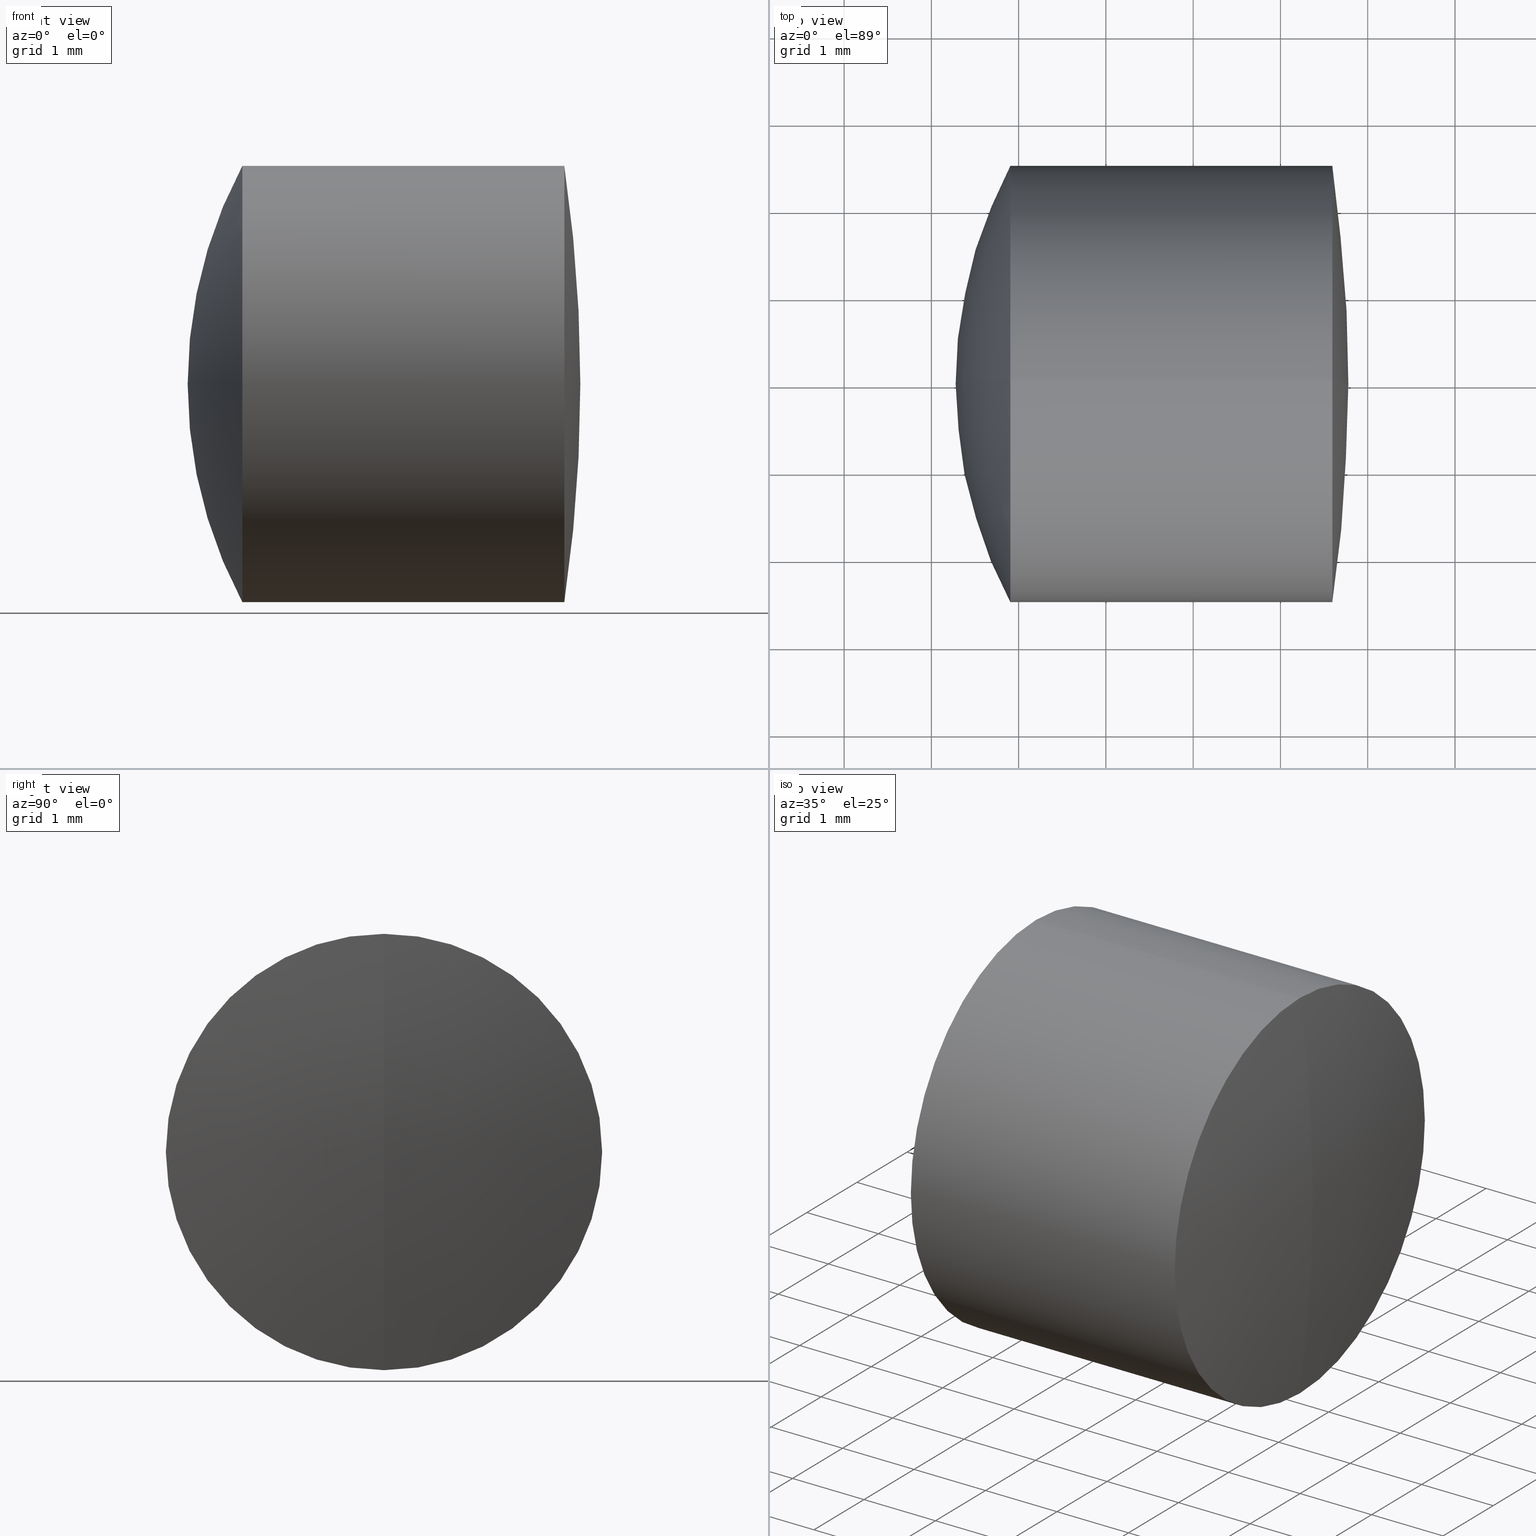
[diagram: canonical four-view strip — front | top / right | iso, engineering-drawing reading convention]
A machine part, canonical four-view strip (front | top / right | iso — engineering-drawing reading convention). The complete STEP part file that produces these views, byte-faithful:
ISO-10303-21;
HEADER;
FILE_DESCRIPTION (( 'STEP AP214' ),
    '1' );
FILE_NAME ('145003.STEP',
    '2019-05-06T03:15:47',
    ( 'user' ),
    ( '΢���й�' ),
    'SwSTEP 2.0',
    'SolidWorks 2016',
    '' );
FILE_SCHEMA (( 'AUTOMOTIVE_DESIGN' ));
ENDSEC;

DATA;
#1 = CIRCLE ( 'NONE', #298, 3.900000000000000400 ) ;
#2 = CARTESIAN_POINT ( 'NONE',  ( 1.904885754841989100, 0.0000000000000000000, 0.0000000000000000000 ) ) ;
#3 = SURFACE_STYLE_USAGE ( .BOTH. , #303 ) ;
#4 = DIRECTION ( 'NONE',  ( 0.0000000000000000000, -1.224646799147353200E-016, 1.000000000000000000 ) ) ;
#5 =( GEOMETRIC_REPRESENTATION_CONTEXT ( 3 ) GLOBAL_UNCERTAINTY_ASSIGNED_CONTEXT ( ( #25 ) ) GLOBAL_UNIT_ASSIGNED_CONTEXT ( ( #148, #311, #329 ) ) REPRESENTATION_CONTEXT ( 'NONE', 'WORKASPACE' ) );
#6 = DIRECTION ( 'NONE',  ( -1.000000000000000000, -0.0000000000000000000, -0.0000000000000000000 ) ) ;
#7 = ORIENTED_EDGE ( 'NONE', *, *, #286, .F. ) ;
#8 = EDGE_LOOP ( 'NONE', ( #316, #130, #341 ) ) ;
#9 = DIRECTION ( 'NONE',  ( 0.0000000000000000000, 0.0000000000000000000, 1.000000000000000000 ) ) ;
#10 = DIRECTION ( 'NONE',  ( 0.0000000000000000000, 1.000000000000000000, 0.0000000000000000000 ) ) ;
#11 = SPHERICAL_SURFACE ( 'NONE', #292, 5.299999999999998900 ) ;
#12 = ORIENTED_EDGE ( 'NONE', *, *, #94, .F. ) ;
#13 = MECHANICAL_DESIGN_GEOMETRIC_PRESENTATION_REPRESENTATION (  '', ( #328 ), #28 ) ;
#14 = ORIENTED_EDGE ( 'NONE', *, *, #136, .T. ) ;
#15 = ORIENTED_EDGE ( 'NONE', *, *, #37, .F. ) ;
#16 = DIRECTION ( 'NONE',  ( 0.0000000000000000000, 0.0000000000000000000, 1.000000000000000000 ) ) ;
#17 = VERTEX_POINT ( 'NONE', #287 ) ;
#18 = SURFACE_STYLE_USAGE ( .BOTH. , #227 ) ;
#19 = CARTESIAN_POINT ( 'NONE',  ( 5.778214333061161900, 0.0000000000000000000, 1.047073013270987200E-015 ) ) ;
#20 = ORIENTED_EDGE ( 'NONE', *, *, #49, .F. ) ;
#21 = ADVANCED_FACE ( 'NONE', ( #193 ), #271, .T. ) ;
#22 = CARTESIAN_POINT ( 'NONE',  ( -0.5519199926577972300, 3.061616997868381700E-016, -2.499999999999998700 ) ) ;
#23 = DIRECTION ( 'NONE',  ( -0.0000000000000000000, 1.000000000000000000, 1.224646799147353200E-016 ) ) ;
#24 = SPHERICAL_SURFACE ( 'NONE', #176, 17.10000000000000500 ) ;
#25 = UNCERTAINTY_MEASURE_WITH_UNIT (LENGTH_MEASURE( 1.000000000000000100E-005 ), #148, 'distance_accuracy_value', 'NONE');
#26 = CARTESIAN_POINT ( 'NONE',  ( 1.904885754841989100, 0.0000000000000000000, 0.0000000000000000000 ) ) ;
#27 = PRODUCT_CONTEXT ( 'NONE', #281, 'mechanical' ) ;
#28 =( GEOMETRIC_REPRESENTATION_CONTEXT ( 3 ) GLOBAL_UNCERTAINTY_ASSIGNED_CONTEXT ( ( #134 ) ) GLOBAL_UNIT_ASSIGNED_CONTEXT ( ( #114, #342, #160 ) ) REPRESENTATION_CONTEXT ( 'NONE', 'WORKASPACE' ) );
#29 = CARTESIAN_POINT ( 'NONE',  ( 5.594478696093561100, 0.0000000000000000000, 0.0000000000000000000 ) ) ;
#30 = DIRECTION ( 'NONE',  ( 0.0000000000000000000, 1.000000000000000000, 0.0000000000000000000 ) ) ;
#31 = DIRECTION ( 'NONE',  ( 0.0000000000000000000, 1.000000000000000000, 0.0000000000000000000 ) ) ;
#32 = LINE ( 'NONE', #178, #320 ) ;
#33 = ORIENTED_EDGE ( 'NONE', *, *, #136, .F. ) ;
#34 = DIRECTION ( 'NONE',  ( 0.0000000000000000000, 0.0000000000000000000, 1.000000000000000000 ) ) ;
#35 = ORIENTED_EDGE ( 'NONE', *, *, #99, .T. ) ;
#36 = DIRECTION ( 'NONE',  ( 0.0000000000000000000, 0.0000000000000000000, 1.000000000000000000 ) ) ;
#37 = EDGE_CURVE ( 'NONE', #245, #266, #238, .T. ) ;
#38 = FACE_OUTER_BOUND ( 'NONE', #333, .T. ) ;
#39 = CARTESIAN_POINT ( 'NONE',  ( 3.171540242480312500, 0.0000000000000000000, 0.0000000000000000000 ) ) ;
#40 = ORIENTED_EDGE ( 'NONE', *, *, #295, .F. ) ;
#41 = CARTESIAN_POINT ( 'NONE',  ( 3.171540242480312100, 0.0000000000000000000, 0.0000000000000000000 ) ) ;
#42 = CIRCLE ( 'NONE', #310, 2.499999999999997800 ) ;
#43 = SPHERICAL_SURFACE ( 'NONE', #46, 3.900000000000000800 ) ;
#44 = APPLICATION_PROTOCOL_DEFINITION ( 'draft international standard', 'automotive_design', 1998, #117 ) ;
#45 =( NAMED_UNIT ( * ) PLANE_ANGLE_UNIT ( ) SI_UNIT ( $, .RADIAN. ) );
#46 = AXIS2_PLACEMENT_3D ( 'NONE', #74, #137, #161 ) ;
#47 = FACE_OUTER_BOUND ( 'NONE', #155, .T. ) ;
#48 = SURFACE_STYLE_FILL_AREA ( #127 ) ;
#49 = EDGE_CURVE ( 'NONE', #174, #231, #135, .T. ) ;
#50 = ORIENTED_EDGE ( 'NONE', *, *, #153, .T. ) ;
#51 = FILL_AREA_STYLE_COLOUR ( '', #336 ) ;
#52 = CARTESIAN_POINT ( 'NONE',  ( 0.0000000000000000000, 0.0000000000000000000, 0.0000000000000000000 ) ) ;
#53 = EDGE_CURVE ( 'NONE', #210, #245, #65, .T. ) ;
#54 = DIRECTION ( 'NONE',  ( 0.0000000000000000000, 1.000000000000000000, 0.0000000000000000000 ) ) ;
#55 = DIRECTION ( 'NONE',  ( 0.0000000000000000000, 0.0000000000000000000, 1.000000000000000000 ) ) ;
#56 = DIRECTION ( 'NONE',  ( -1.000000000000000000, -0.0000000000000000000, -0.0000000000000000000 ) ) ;
#57 = AXIS2_PLACEMENT_3D ( 'NONE', #52, #124, #255 ) ;
#58 = CARTESIAN_POINT ( 'NONE',  ( -0.8160621761658039000, 0.0000000000000000000, 0.0000000000000000000 ) ) ;
#59 = CARTESIAN_POINT ( 'NONE',  ( 0.1782143330611579400, 0.0000000000000000000, -1.863472483959460700E-017 ) ) ;
#60 = EDGE_LOOP ( 'NONE', ( #150, #204, #15 ) ) ;
#61 = DIRECTION ( 'NONE',  ( 0.0000000000000000000, -1.224646799147353200E-016, 1.000000000000000000 ) ) ;
#62 = DIRECTION ( 'NONE',  ( -1.000000000000000000, -0.0000000000000000000, -0.0000000000000000000 ) ) ;
#63 = DIRECTION ( 'NONE',  ( 0.0000000000000000000, 0.0000000000000000000, 1.000000000000000000 ) ) ;
#64 = AXIS2_PLACEMENT_3D ( 'NONE', #254, #31, #55 ) ;
#65 = CIRCLE ( 'NONE', #181, 2.500000000000000000 ) ;
#66 = DIRECTION ( 'NONE',  ( 0.0000000000000000000, 0.0000000000000000000, 1.000000000000000000 ) ) ;
#67 = ADVANCED_FACE ( 'NONE', ( #340 ), #172, .T. ) ;
#68 = AXIS2_PLACEMENT_3D ( 'NONE', #196, #331, #252 ) ;
#69 = CARTESIAN_POINT ( 'NONE',  ( -11.32178566693884200, 0.0000000000000000000, 0.0000000000000000000 ) ) ;
#70 = EDGE_CURVE ( 'NONE', #97, #17, #290, .T. ) ;
#71 = ORIENTED_EDGE ( 'NONE', *, *, #185, .T. ) ;
#72 = ORIENTED_EDGE ( 'NONE', *, *, #221, .T. ) ;
#73 = EDGE_CURVE ( 'NONE', #131, #231, #140, .T. ) ;
#74 = CARTESIAN_POINT ( 'NONE',  ( 0.1782143330611579400, 0.0000000000000000000, -1.863472483959460700E-017 ) ) ;
#75 = PRODUCT_DEFINITION ( 'δ֪', '', #103, #234 ) ;
#76 =( NAMED_UNIT ( * ) SI_UNIT ( $, .STERADIAN. ) SOLID_ANGLE_UNIT ( ) );
#77 = CARTESIAN_POINT ( 'NONE',  ( 4.078214333061158200, 0.0000000000000000000, 2.201714009941392800E-016 ) ) ;
#78 = ADVANCED_FACE ( 'NONE', ( #112 ), #322, .T. ) ;
#79 = ORIENTED_EDGE ( 'NONE', *, *, #111, .T. ) ;
#80 = CARTESIAN_POINT ( 'NONE',  ( -0.5519199926577972300, 0.0000000000000000000, 2.499999999999998700 ) ) ;
#81 = ADVANCED_FACE ( 'NONE', ( #105 ), #11, .T. ) ;
#82 = AXIS2_PLACEMENT_3D ( 'NONE', #247, #23, #198 ) ;
#83 = ORIENTED_EDGE ( 'NONE', *, *, #37, .T. ) ;
#84 = CARTESIAN_POINT ( 'NONE',  ( -11.32178566693884200, 0.0000000000000000000, 0.0000000000000000000 ) ) ;
#85 = CARTESIAN_POINT ( 'NONE',  ( 5.594478696093561100, 0.0000000000000000000, 2.499999999999997800 ) ) ;
#86 = DIRECTION ( 'NONE',  ( -1.000000000000000000, -0.0000000000000000000, -0.0000000000000000000 ) ) ;
#87 = ORIENTED_EDGE ( 'NONE', *, *, #73, .T. ) ;
#88 = PRODUCT_DEFINITION_SHAPE ( 'NONE', 'NONE',  #75 ) ;
#89 = DIRECTION ( 'NONE',  ( 0.0000000000000000000, 1.000000000000000000, 0.0000000000000000000 ) ) ;
#90 = CARTESIAN_POINT ( 'NONE',  ( 4.078214333061158200, 0.0000000000000000000, 2.201714009941392800E-016 ) ) ;
#91 = ORIENTED_EDGE ( 'NONE', *, *, #265, .F. ) ;
#92 = AXIS2_PLACEMENT_3D ( 'NONE', #58, #242, #296 ) ;
#93 = DIRECTION ( 'NONE',  ( -1.000000000000000000, -0.0000000000000000000, -0.0000000000000000000 ) ) ;
#94 = EDGE_CURVE ( 'NONE', #131, #210, #32, .T. ) ;
#95 = SURFACE_STYLE_USAGE ( .BOTH. , #288 ) ;
#96 = DIRECTION ( 'NONE',  ( 0.0000000000000000000, -1.000000000000000000, 0.0000000000000000000 ) ) ;
#97 = VERTEX_POINT ( 'NONE', #268 ) ;
#98 = DIRECTION ( 'NONE',  ( 0.0000000000000000000, 0.0000000000000000000, 1.000000000000000000 ) ) ;
#99 = EDGE_CURVE ( 'NONE', #302, #143, #297, .T. ) ;
#100 = ORIENTED_EDGE ( 'NONE', *, *, #70, .T. ) ;
#101 = ORIENTED_EDGE ( 'NONE', *, *, #168, .T. ) ;
#102 = CARTESIAN_POINT ( 'NONE',  ( 0.1782143330611579400, 0.0000000000000000000, -1.863472483959460700E-017 ) ) ;
#103 = PRODUCT_DEFINITION_FORMATION_WITH_SPECIFIED_SOURCE ( '�κ�', '', #104, .NOT_KNOWN. ) ;
#104 = PRODUCT ( '145003', '145003', '', ( #27 ) ) ;
#105 = FACE_OUTER_BOUND ( 'NONE', #236, .T. ) ;
#106 = ORIENTED_EDGE ( 'NONE', *, *, #94, .T. ) ;
#107 = AXIS2_PLACEMENT_3D ( 'NONE', #2, #277, #201 ) ;
#108 = CIRCLE ( 'NONE', #107, 2.500000000000000000 ) ;
#109 = EDGE_LOOP ( 'NONE', ( #12, #87, #226, #280 ) ) ;
#110 =( LENGTH_UNIT ( ) NAMED_UNIT ( * ) SI_UNIT ( .MILLI., .METRE. ) );
#111 = EDGE_CURVE ( 'NONE', #143, #294, #42, .T. ) ;
#112 = FACE_OUTER_BOUND ( 'NONE', #115, .T. ) ;
#113 = CARTESIAN_POINT ( 'NONE',  ( 5.594478696093561100, 0.0000000000000000000, 0.0000000000000000000 ) ) ;
#114 =( LENGTH_UNIT ( ) NAMED_UNIT ( * ) SI_UNIT ( .MILLI., .METRE. ) );
#115 = EDGE_LOOP ( 'NONE', ( #173, #232, #186 ) ) ;
#116 = DIRECTION ( 'NONE',  ( 0.0000000000000000000, 0.0000000000000000000, 1.000000000000000000 ) ) ;
#117 = APPLICATION_CONTEXT ( 'automotive_design' ) ;
#118 = ADVANCED_FACE ( 'NONE', ( #269 ), #159, .T. ) ;
#119 = EDGE_CURVE ( 'NONE', #302, #294, #188, .T. ) ;
#120 = VECTOR ( 'NONE', #346, 1000.000000000000000 ) ;
#121 = CARTESIAN_POINT ( 'NONE',  ( 5.594478696093561100, 3.061616997868381200E-016, -2.499999999999997800 ) ) ;
#122 = CARTESIAN_POINT ( 'NONE',  ( 6.578214333061157300, 0.0000000000000000000, -1.863472577360591900E-017 ) ) ;
#123 = CARTESIAN_POINT ( 'NONE',  ( -0.5519199926577972300, 0.0000000000000000000, 0.0000000000000000000 ) ) ;
#124 = DIRECTION ( 'NONE',  ( 0.0000000000000000000, 0.0000000000000000000, 1.000000000000000000 ) ) ;
#125 = PRODUCT_RELATED_PRODUCT_CATEGORY ( 'part', '', ( #104 ) ) ;
#126 = CIRCLE ( 'NONE', #187, 2.499999999999997800 ) ;
#127 = FILL_AREA_STYLE ('',( #51 ) ) ;
#128 = AXIS2_PLACEMENT_3D ( 'NONE', #123, #86, #144 ) ;
#129 = VECTOR ( 'NONE', #138, 1000.000000000000000 ) ;
#130 = ORIENTED_EDGE ( 'NONE', *, *, #49, .T. ) ;
#131 = VERTEX_POINT ( 'NONE', #326 ) ;
#132 = LINE ( 'NONE', #22, #120 ) ;
#133 = AXIS2_PLACEMENT_3D ( 'NONE', #122, #317, #251 ) ;
#134 = UNCERTAINTY_MEASURE_WITH_UNIT (LENGTH_MEASURE( 1.000000000000000100E-005 ), #114, 'distance_accuracy_value', 'NONE');
#135 = CIRCLE ( 'NONE', #162, 3.900000000000000400 ) ;
#136 = EDGE_CURVE ( 'NONE', #294, #143, #126, .T. ) ;
#137 = DIRECTION ( 'NONE',  ( 0.0000000000000000000, 1.000000000000000000, 0.0000000000000000000 ) ) ;
#138 = DIRECTION ( 'NONE',  ( -1.000000000000000000, -0.0000000000000000000, -0.0000000000000000000 ) ) ;
#139 = FILL_AREA_STYLE_COLOUR ( '', #222 ) ;
#140 = CIRCLE ( 'NONE', #235, 2.500000000000000400 ) ;
#141 = AXIS2_PLACEMENT_3D ( 'NONE', #217, #189, #4 ) ;
#142 = CARTESIAN_POINT ( 'NONE',  ( -0.5519199926577972300, 0.0000000000000000000, 0.0000000000000000000 ) ) ;
#143 = VERTEX_POINT ( 'NONE', #121 ) ;
#144 = DIRECTION ( 'NONE',  ( 0.0000000000000000000, 0.0000000000000000000, 1.000000000000000000 ) ) ;
#145 = CIRCLE ( 'NONE', #82, 5.299999999999998900 ) ;
#146 = DIRECTION ( 'NONE',  ( 0.0000000000000000000, 1.000000000000000000, 0.0000000000000000000 ) ) ;
#147 = AXIS2_PLACEMENT_3D ( 'NONE', #59, #89, #312 ) ;
#148 =( LENGTH_UNIT ( ) NAMED_UNIT ( * ) SI_UNIT ( .MILLI., .METRE. ) );
#149 = PRESENTATION_STYLE_ASSIGNMENT (( #18 ) ) ;
#150 = ORIENTED_EDGE ( 'NONE', *, *, #283, .T. ) ;
#151 = DIRECTION ( 'NONE',  ( -1.000000000000000000, -0.0000000000000000000, -0.0000000000000000000 ) ) ;
#152 = CLOSED_SHELL ( 'NONE', ( #21, #216, #67, #81, #118, #258 ) ) ;
#153 = EDGE_CURVE ( 'NONE', #231, #131, #250, .T. ) ;
#154 = CARTESIAN_POINT ( 'NONE',  ( -11.32178566693884200, 0.0000000000000000000, 0.0000000000000000000 ) ) ;
#155 = EDGE_LOOP ( 'NONE', ( #323, #35, #33 ) ) ;
#156 = ORIENTED_EDGE ( 'NONE', *, *, #70, .F. ) ;
#157 =( GEOMETRIC_REPRESENTATION_CONTEXT ( 3 ) GLOBAL_UNCERTAINTY_ASSIGNED_CONTEXT ( ( #213 ) ) GLOBAL_UNIT_ASSIGNED_CONTEXT ( ( #345, #45, #239 ) ) REPRESENTATION_CONTEXT ( 'NONE', 'WORKASPACE' ) );
#158 = SPHERICAL_SURFACE ( 'NONE', #64, 3.900000000000000400 ) ;
#159 = CYLINDRICAL_SURFACE ( 'NONE', #223, 2.500000000000000400 ) ;
#160 =( NAMED_UNIT ( * ) SI_UNIT ( $, .STERADIAN. ) SOLID_ANGLE_UNIT ( ) );
#161 = DIRECTION ( 'NONE',  ( 0.0000000000000000000, 0.0000000000000000000, 1.000000000000000000 ) ) ;
#162 = AXIS2_PLACEMENT_3D ( 'NONE', #102, #96, #202 ) ;
#163 = VERTEX_POINT ( 'NONE', #90 ) ;
#164 = ADVANCED_FACE ( 'NONE', ( #314 ), #330, .F. ) ;
#165 = FILL_AREA_STYLE ('',( #279 ) ) ;
#166 = DIRECTION ( 'NONE',  ( 0.0000000000000000000, 0.0000000000000000000, 1.000000000000000000 ) ) ;
#167 = ADVANCED_FACE ( 'NONE', ( #38 ), #184, .T. ) ;
#168 = EDGE_CURVE ( 'NONE', #143, #97, #132, .T. ) ;
#169 = EDGE_LOOP ( 'NONE', ( #20, #71, #259 ) ) ;
#170 = CARTESIAN_POINT ( 'NONE',  ( 1.278214333061158200, 0.0000000000000000000, 3.058966760004426300E-016 ) ) ;
#171 = CIRCLE ( 'NONE', #141, 3.900000000000000800 ) ;
#172 = SPHERICAL_SURFACE ( 'NONE', #215, 5.299999999999998900 ) ;
#173 = ORIENTED_EDGE ( 'NONE', *, *, #99, .F. ) ;
#174 = VERTEX_POINT ( 'NONE', #77 ) ;
#175 = DIRECTION ( 'NONE',  ( -0.0000000000000000000, 1.000000000000000000, 1.224646799147353200E-016 ) ) ;
#176 = AXIS2_PLACEMENT_3D ( 'NONE', #84, #146, #190 ) ;
#177 = ORIENTED_EDGE ( 'NONE', *, *, #295, .T. ) ;
#178 = CARTESIAN_POINT ( 'NONE',  ( -0.8160621761658039000, 3.061616997868383600E-016, -2.500000000000000400 ) ) ;
#179 = ORIENTED_EDGE ( 'NONE', *, *, #237, .F. ) ;
#180 = PRESENTATION_STYLE_ASSIGNMENT (( #3 ) ) ;
#181 = AXIS2_PLACEMENT_3D ( 'NONE', #26, #262, #16 ) ;
#182 = ORIENTED_EDGE ( 'NONE', *, *, #205, .T. ) ;
#183 = FACE_OUTER_BOUND ( 'NONE', #263, .T. ) ;
#184 = CYLINDRICAL_SURFACE ( 'NONE', #315, 2.499999999999998700 ) ;
#185 = EDGE_CURVE ( 'NONE', #174, #131, #1, .T. ) ;
#186 = ORIENTED_EDGE ( 'NONE', *, *, #111, .F. ) ;
#187 = AXIS2_PLACEMENT_3D ( 'NONE', #113, #194, #34 ) ;
#188 = CIRCLE ( 'NONE', #206, 17.10000000000000500 ) ;
#189 = DIRECTION ( 'NONE',  ( -0.0000000000000000000, 1.000000000000000000, 1.224646799147353200E-016 ) ) ;
#190 = DIRECTION ( 'NONE',  ( 0.0000000000000000000, 0.0000000000000000000, 1.000000000000000000 ) ) ;
#191 = LINE ( 'NONE', #80, #129 ) ;
#192 = STYLED_ITEM ( 'NONE', ( #149 ), #305 ) ;
#193 = FACE_OUTER_BOUND ( 'NONE', #169, .T. ) ;
#194 = DIRECTION ( 'NONE',  ( -1.000000000000000000, -0.0000000000000000000, -0.0000000000000000000 ) ) ;
#195 = DIRECTION ( 'NONE',  ( 0.0000000000000000000, 1.000000000000000000, 0.0000000000000000000 ) ) ;
#196 = CARTESIAN_POINT ( 'NONE',  ( 0.1782143330611579400, 0.0000000000000000000, -1.863472483959460700E-017 ) ) ;
#197 = CIRCLE ( 'NONE', #267, 2.499999999999999100 ) ;
#198 = DIRECTION ( 'NONE',  ( 0.0000000000000000000, -1.224646799147353200E-016, 1.000000000000000000 ) ) ;
#199 = AXIS2_PLACEMENT_3D ( 'NONE', #39, #56, #66 ) ;
#200 = ORIENTED_EDGE ( 'NONE', *, *, #53, .T. ) ;
#201 = DIRECTION ( 'NONE',  ( 0.0000000000000000000, 0.0000000000000000000, 1.000000000000000000 ) ) ;
#202 = DIRECTION ( 'NONE',  ( 0.0000000000000000000, 0.0000000000000000000, -1.000000000000000000 ) ) ;
#203 = EDGE_LOOP ( 'NONE', ( #91, #177, #100 ) ) ;
#204 = ORIENTED_EDGE ( 'NONE', *, *, #286, .T. ) ;
#205 = EDGE_CURVE ( 'NONE', #17, #97, #197, .T. ) ;
#206 = AXIS2_PLACEMENT_3D ( 'NONE', #218, #249, #219 ) ;
#207 = DIRECTION ( 'NONE',  ( -0.0000000000000000000, 1.000000000000000000, 1.224646799147353200E-016 ) ) ;
#208 = MANIFOLD_SOLID_BREP ( '��ת3', #253 ) ;
#209 = DIRECTION ( 'NONE',  ( -1.000000000000000000, -0.0000000000000000000, -0.0000000000000000000 ) ) ;
#210 = VERTEX_POINT ( 'NONE', #260 ) ;
#211 = PRESENTATION_LAYER_ASSIGNMENT (  '', '', ( #192 ) ) ;
#212 = ORIENTED_EDGE ( 'NONE', *, *, #168, .F. ) ;
#213 = UNCERTAINTY_MEASURE_WITH_UNIT (LENGTH_MEASURE( 1.000000000000000100E-005 ), #345, 'distance_accuracy_value', 'NONE');
#214 = LINE ( 'NONE', #273, #241 ) ;
#215 = AXIS2_PLACEMENT_3D ( 'NONE', #229, #30, #332 ) ;
#216 = ADVANCED_FACE ( 'NONE', ( #183 ), #337, .T. ) ;
#217 = CARTESIAN_POINT ( 'NONE',  ( 0.1782143330611579400, 0.0000000000000000000, -1.863472483959460700E-017 ) ) ;
#218 = CARTESIAN_POINT ( 'NONE',  ( -11.32178566693884200, 0.0000000000000000000, 0.0000000000000000000 ) ) ;
#219 = DIRECTION ( 'NONE',  ( 0.0000000000000000000, 0.0000000000000000000, -1.000000000000000000 ) ) ;
#220 = ADVANCED_FACE ( 'NONE', ( #257 ), #43, .F. ) ;
#221 = EDGE_CURVE ( 'NONE', #294, #17, #191, .T. ) ;
#222 = COLOUR_RGB ( '',1.000000000000000000, 1.000000000000000000, 1.000000000000000000 ) ;
#223 = AXIS2_PLACEMENT_3D ( 'NONE', #334, #225, #116 ) ;
#224 = CARTESIAN_POINT ( 'NONE',  ( 6.578214333061157300, 0.0000000000000000000, -1.863472577360591900E-017 ) ) ;
#225 = DIRECTION ( 'NONE',  ( -1.000000000000000000, -0.0000000000000000000, -0.0000000000000000000 ) ) ;
#226 = ORIENTED_EDGE ( 'NONE', *, *, #237, .T. ) ;
#227 = SURFACE_SIDE_STYLE ('',( #339 ) ) ;
#228 = CARTESIAN_POINT ( 'NONE',  ( 0.1782143330611579400, 0.0000000000000000000, -1.863472483959460700E-017 ) ) ;
#229 = CARTESIAN_POINT ( 'NONE',  ( 6.578214333061157300, 0.0000000000000000000, -1.863472577360591900E-017 ) ) ;
#230 = CARTESIAN_POINT ( 'NONE',  ( 3.171540242480312100, 0.0000000000000000000, 0.0000000000000000000 ) ) ;
#231 = VERTEX_POINT ( 'NONE', #300 ) ;
#232 = ORIENTED_EDGE ( 'NONE', *, *, #119, .T. ) ;
#233 = MECHANICAL_DESIGN_GEOMETRIC_PRESENTATION_REPRESENTATION (  '', ( #192 ), #248 ) ;
#234 = PRODUCT_DEFINITION_CONTEXT ( 'detailed design', #117, 'design' ) ;
#235 = AXIS2_PLACEMENT_3D ( 'NONE', #41, #151, #327 ) ;
#236 = EDGE_LOOP ( 'NONE', ( #7, #200, #83 ) ) ;
#237 = EDGE_CURVE ( 'NONE', #231, #245, #214, .T. ) ;
#238 = CIRCLE ( 'NONE', #133, 5.299999999999998900 ) ;
#239 =( NAMED_UNIT ( * ) SI_UNIT ( $, .STERADIAN. ) SOLID_ANGLE_UNIT ( ) );
#240 = AXIS2_PLACEMENT_3D ( 'NONE', #230, #93, #246 ) ;
#241 = VECTOR ( 'NONE', #6, 1000.000000000000000 ) ;
#242 = DIRECTION ( 'NONE',  ( -1.000000000000000000, -0.0000000000000000000, -0.0000000000000000000 ) ) ;
#243 = ORIENTED_EDGE ( 'NONE', *, *, #205, .F. ) ;
#244 = DIRECTION ( 'NONE',  ( 0.0000000000000000000, -1.224646799147353200E-016, 1.000000000000000000 ) ) ;
#245 = VERTEX_POINT ( 'NONE', #344 ) ;
#246 = DIRECTION ( 'NONE',  ( 0.0000000000000000000, 0.0000000000000000000, 1.000000000000000000 ) ) ;
#247 = CARTESIAN_POINT ( 'NONE',  ( 6.578214333061157300, 0.0000000000000000000, -1.863472577360591900E-017 ) ) ;
#248 =( GEOMETRIC_REPRESENTATION_CONTEXT ( 3 ) GLOBAL_UNCERTAINTY_ASSIGNED_CONTEXT ( ( #272 ) ) GLOBAL_UNIT_ASSIGNED_CONTEXT ( ( #110, #276, #76 ) ) REPRESENTATION_CONTEXT ( 'NONE', 'WORKASPACE' ) );
#249 = DIRECTION ( 'NONE',  ( 0.0000000000000000000, -1.000000000000000000, 0.0000000000000000000 ) ) ;
#250 = CIRCLE ( 'NONE', #240, 2.500000000000000400 ) ;
#251 = DIRECTION ( 'NONE',  ( 0.0000000000000000000, 0.0000000000000000000, -1.000000000000000000 ) ) ;
#252 = DIRECTION ( 'NONE',  ( 0.0000000000000000000, 0.0000000000000000000, -1.000000000000000000 ) ) ;
#253 = CLOSED_SHELL ( 'NONE', ( #301, #167, #220, #164, #282, #78 ) ) ;
#254 = CARTESIAN_POINT ( 'NONE',  ( 0.1782143330611579400, 0.0000000000000000000, -1.863472483959460700E-017 ) ) ;
#255 = DIRECTION ( 'NONE',  ( 1.000000000000000000, 0.0000000000000000000, 0.0000000000000000000 ) ) ;
#256 = SURFACE_STYLE_FILL_AREA ( #308 ) ;
#257 = FACE_OUTER_BOUND ( 'NONE', #203, .T. ) ;
#258 = ADVANCED_FACE ( 'NONE', ( #270 ), #158, .T. ) ;
#259 = ORIENTED_EDGE ( 'NONE', *, *, #153, .F. ) ;
#260 = CARTESIAN_POINT ( 'NONE',  ( 1.904885754841988900, 3.061616997868383100E-016, -2.500000000000000000 ) ) ;
#261 = AXIS2_PLACEMENT_3D ( 'NONE', #154, #207, #61 ) ;
#262 = DIRECTION ( 'NONE',  ( -1.000000000000000000, -0.0000000000000000000, -0.0000000000000000000 ) ) ;
#263 = EDGE_LOOP ( 'NONE', ( #50, #106, #299, #179 ) ) ;
#264 = DIRECTION ( 'NONE',  ( 0.0000000000000000000, 0.0000000000000000000, 1.000000000000000000 ) ) ;
#265 = EDGE_CURVE ( 'NONE', #163, #17, #325, .T. ) ;
#266 = VERTEX_POINT ( 'NONE', #170 ) ;
#267 = AXIS2_PLACEMENT_3D ( 'NONE', #335, #62, #264 ) ;
#268 = CARTESIAN_POINT ( 'NONE',  ( 3.171540242480312500, 3.061616997868382200E-016, -2.499999999999999100 ) ) ;
#269 = FACE_OUTER_BOUND ( 'NONE', #109, .T. ) ;
#270 = FACE_OUTER_BOUND ( 'NONE', #8, .T. ) ;
#271 = SPHERICAL_SURFACE ( 'NONE', #147, 3.900000000000000400 ) ;
#272 = UNCERTAINTY_MEASURE_WITH_UNIT (LENGTH_MEASURE( 1.000000000000000100E-005 ), #110, 'distance_accuracy_value', 'NONE');
#273 = CARTESIAN_POINT ( 'NONE',  ( -0.8160621761658039000, 0.0000000000000000000, 2.500000000000000400 ) ) ;
#274 = CYLINDRICAL_SURFACE ( 'NONE', #128, 2.499999999999998700 ) ;
#275 = PRESENTATION_STYLE_ASSIGNMENT (( #95 ) ) ;
#276 =( NAMED_UNIT ( * ) PLANE_ANGLE_UNIT ( ) SI_UNIT ( $, .RADIAN. ) );
#277 = DIRECTION ( 'NONE',  ( -1.000000000000000000, -0.0000000000000000000, -0.0000000000000000000 ) ) ;
#278 = AXIS2_PLACEMENT_3D ( 'NONE', #69, #10, #63 ) ;
#279 = FILL_AREA_STYLE_COLOUR ( '', #313 ) ;
#280 = ORIENTED_EDGE ( 'NONE', *, *, #53, .F. ) ;
#281 = APPLICATION_CONTEXT ( 'automotive_design' ) ;
#282 = ADVANCED_FACE ( 'NONE', ( #321 ), #274, .T. ) ;
#283 = EDGE_CURVE ( 'NONE', #245, #210, #108, .T. ) ;
#284 = AXIS2_PLACEMENT_3D ( 'NONE', #309, #54, #36 ) ;
#285 = DIRECTION ( 'NONE',  ( -1.000000000000000000, -0.0000000000000000000, -0.0000000000000000000 ) ) ;
#286 = EDGE_CURVE ( 'NONE', #210, #266, #145, .T. ) ;
#287 = CARTESIAN_POINT ( 'NONE',  ( 3.171540242480312500, 0.0000000000000000000, 2.499999999999999100 ) ) ;
#288 = SURFACE_SIDE_STYLE ('',( #48 ) ) ;
#289 = DIRECTION ( 'NONE',  ( -1.000000000000000000, -0.0000000000000000000, -0.0000000000000000000 ) ) ;
#290 = CIRCLE ( 'NONE', #199, 2.499999999999999100 ) ;
#291 = STYLED_ITEM ( 'NONE', ( #180 ), #306 ) ;
#292 = AXIS2_PLACEMENT_3D ( 'NONE', #224, #195, #9 ) ;
#293 = ORIENTED_EDGE ( 'NONE', *, *, #221, .F. ) ;
#294 = VERTEX_POINT ( 'NONE', #85 ) ;
#295 = EDGE_CURVE ( 'NONE', #163, #97, #171, .T. ) ;
#296 = DIRECTION ( 'NONE',  ( 0.0000000000000000000, 0.0000000000000000000, 1.000000000000000000 ) ) ;
#297 = CIRCLE ( 'NONE', #261, 17.10000000000000500 ) ;
#298 = AXIS2_PLACEMENT_3D ( 'NONE', #228, #175, #244 ) ;
#299 = ORIENTED_EDGE ( 'NONE', *, *, #283, .F. ) ;
#300 = CARTESIAN_POINT ( 'NONE',  ( 3.171540242480312100, 0.0000000000000000000, 2.500000000000000400 ) ) ;
#301 = ADVANCED_FACE ( 'NONE', ( #47 ), #24, .T. ) ;
#302 = VERTEX_POINT ( 'NONE', #19 ) ;
#303 = SURFACE_SIDE_STYLE ('',( #256 ) ) ;
#304 = PRESENTATION_LAYER_ASSIGNMENT (  '', '', ( #291 ) ) ;
#305 = MANIFOLD_SOLID_BREP ( '��ת1', #152 ) ;
#306 = ADVANCED_BREP_SHAPE_REPRESENTATION ( '145003', ( #305, #208, #57 ), #157 ) ;
#307 = EDGE_LOOP ( 'NONE', ( #40, #338, #182 ) ) ;
#308 = FILL_AREA_STYLE ('',( #139 ) ) ;
#309 = CARTESIAN_POINT ( 'NONE',  ( 0.1782143330611579400, 0.0000000000000000000, -1.863472483959460700E-017 ) ) ;
#310 = AXIS2_PLACEMENT_3D ( 'NONE', #29, #289, #98 ) ;
#311 =( NAMED_UNIT ( * ) PLANE_ANGLE_UNIT ( ) SI_UNIT ( $, .RADIAN. ) );
#312 = DIRECTION ( 'NONE',  ( 0.0000000000000000000, 0.0000000000000000000, 1.000000000000000000 ) ) ;
#313 = COLOUR_RGB ( '',1.000000000000000000, 1.000000000000000000, 1.000000000000000000 ) ;
#314 = FACE_OUTER_BOUND ( 'NONE', #307, .T. ) ;
#315 = AXIS2_PLACEMENT_3D ( 'NONE', #142, #285, #166 ) ;
#316 = ORIENTED_EDGE ( 'NONE', *, *, #185, .F. ) ;
#317 = DIRECTION ( 'NONE',  ( 0.0000000000000000000, -1.000000000000000000, 0.0000000000000000000 ) ) ;
#318 = EDGE_LOOP ( 'NONE', ( #212, #79, #72, #156 ) ) ;
#319 = MECHANICAL_DESIGN_GEOMETRIC_PRESENTATION_REPRESENTATION (  '', ( #291 ), #5 ) ;
#320 = VECTOR ( 'NONE', #209, 1000.000000000000000 ) ;
#321 = FACE_OUTER_BOUND ( 'NONE', #318, .T. ) ;
#322 = SPHERICAL_SURFACE ( 'NONE', #278, 17.10000000000000500 ) ;
#323 = ORIENTED_EDGE ( 'NONE', *, *, #119, .F. ) ;
#324 = APPLICATION_PROTOCOL_DEFINITION ( 'draft international standard', 'automotive_design', 1998, #281 ) ;
#325 = CIRCLE ( 'NONE', #68, 3.900000000000000800 ) ;
#326 = CARTESIAN_POINT ( 'NONE',  ( 3.171540242480312100, 3.061616997868383600E-016, -2.500000000000000400 ) ) ;
#327 = DIRECTION ( 'NONE',  ( 0.0000000000000000000, 0.0000000000000000000, 1.000000000000000000 ) ) ;
#328 = STYLED_ITEM ( 'NONE', ( #275 ), #208 ) ;
#329 =( NAMED_UNIT ( * ) SI_UNIT ( $, .STERADIAN. ) SOLID_ANGLE_UNIT ( ) );
#330 = SPHERICAL_SURFACE ( 'NONE', #284, 3.900000000000000800 ) ;
#331 = DIRECTION ( 'NONE',  ( 0.0000000000000000000, -1.000000000000000000, 0.0000000000000000000 ) ) ;
#332 = DIRECTION ( 'NONE',  ( 0.0000000000000000000, 0.0000000000000000000, 1.000000000000000000 ) ) ;
#333 = EDGE_LOOP ( 'NONE', ( #14, #101, #243, #293 ) ) ;
#334 = CARTESIAN_POINT ( 'NONE',  ( -0.8160621761658039000, 0.0000000000000000000, 0.0000000000000000000 ) ) ;
#335 = CARTESIAN_POINT ( 'NONE',  ( 3.171540242480312500, 0.0000000000000000000, 0.0000000000000000000 ) ) ;
#336 = COLOUR_RGB ( '',1.000000000000000000, 1.000000000000000000, 1.000000000000000000 ) ;
#337 = CYLINDRICAL_SURFACE ( 'NONE', #92, 2.500000000000000400 ) ;
#338 = ORIENTED_EDGE ( 'NONE', *, *, #265, .T. ) ;
#339 = SURFACE_STYLE_FILL_AREA ( #165 ) ;
#340 = FACE_OUTER_BOUND ( 'NONE', #60, .T. ) ;
#341 = ORIENTED_EDGE ( 'NONE', *, *, #73, .F. ) ;
#342 =( NAMED_UNIT ( * ) PLANE_ANGLE_UNIT ( ) SI_UNIT ( $, .RADIAN. ) );
#343 = PRESENTATION_LAYER_ASSIGNMENT (  '', '', ( #328 ) ) ;
#344 = CARTESIAN_POINT ( 'NONE',  ( 1.904885754841988900, 0.0000000000000000000, 2.500000000000000000 ) ) ;
#345 =( LENGTH_UNIT ( ) NAMED_UNIT ( * ) SI_UNIT ( .MILLI., .METRE. ) );
#346 = DIRECTION ( 'NONE',  ( -1.000000000000000000, -0.0000000000000000000, -0.0000000000000000000 ) ) ;
#347 = SHAPE_DEFINITION_REPRESENTATION ( #88, #306 ) ;
ENDSEC;
END-ISO-10303-21;
